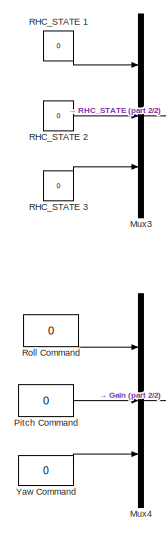
[diagram: root canvas - part 1/2, top left region]
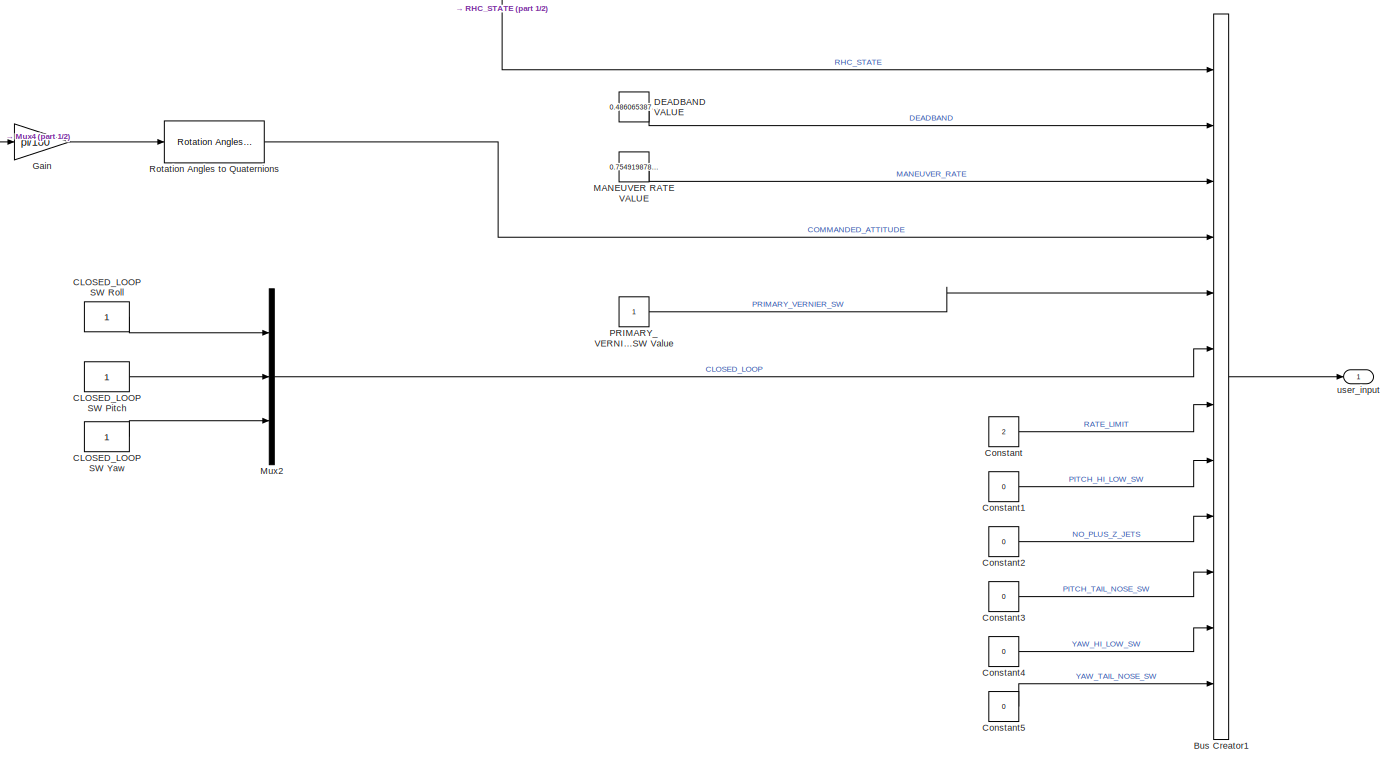
[diagram: root canvas - part 2/2, full width, middle band]
MODEL slx_9120ebd37f4a
KIND model
CONFIG AbsTol = auto
CONFIG EnableMultiTasking = off
CONFIG FixedStep = 0.08
CONFIG MaxStep = auto
CONFIG MinStep = auto
CONFIG RelTol = 1e-3
CONFIG SampleTimeConstraint = Unconstrained
CONFIG Solver = FixedStepDiscrete
CONFIG SolverName = FixedStepDiscrete
CONFIG StartTime = 0.0
CONFIG StopTime = 10.0
BLOCK [BusCreator] Bus Creator1
  DisplayOption = bar
  InheritFromInputs = on
  Inputs = 12
  NonVirtualBus = on
  OutDataTypeStr = Bus: user_inputsBus
  Ports = [12, 1]
BLOCK [Constant] CLOSED_LOOP SW Pitch
  OutDataTypeStr = boolean
BLOCK [Constant] CLOSED_LOOP SW Roll
  OutDataTypeStr = boolean
BLOCK [Constant] CLOSED_LOOP SW Yaw
  OutDataTypeStr = boolean
BLOCK [Constant] Constant
  Value = 2
BLOCK [Constant] Constant1
  OutDataTypeStr = boolean
  Value = 0
BLOCK [Constant] Constant2
  OutDataTypeStr = boolean
  Value = 0
BLOCK [Constant] Constant3
  OutDataTypeStr = boolean
  Value = 0
BLOCK [Constant] Constant4
  OutDataTypeStr = boolean
  Value = 0
BLOCK [Constant] Constant5
  OutDataTypeStr = boolean
  Value = 0
BLOCK [Constant] DEADBAND VALUE
  Value = 0.4860653877258
BLOCK [Gain] Gain
  Gain = pi/180
  OutDataTypeStr = Inherit: Inherit via internal rule
  ParamDataTypeStr = Inherit: Inherit via internal rule
  SaturateOnIntegerOverflow = off
BLOCK [Constant] MANEUVER RATE VALUE
  Value = 0.7549198786418
BLOCK [Mux] Mux2
  DisplayOption = bar
  Inputs = 3
  Ports = [3, 1]
BLOCK [Mux] Mux3
  DisplayOption = bar
  Inputs = 3
  Ports = [3, 1]
BLOCK [Mux] Mux4
  DisplayOption = bar
  Inputs = 3
  Ports = [3, 1]
BLOCK [Constant] PRIMARY_VERNIER_SW Value
  OutDataTypeStr = boolean
BLOCK [Constant] Pitch Command
  Value = 0
BLOCK [Constant] RHC_STATE 1
  OutDataTypeStr = int8
  Value = 0
BLOCK [Constant] RHC_STATE 2
  OutDataTypeStr = int8
  Value = 0
BLOCK [Constant] RHC_STATE 3
  OutDataTypeStr = int8
  Value = 0
BLOCK [Constant] Roll Command
  Value = 0
BLOCK [Reference] Rotation Angles to Quaternions  REF=MATLAB_Function_lib/Rotation Angles to Quaternions
  Ports = [1, 1]
  SourceBlock = MATLAB_Function_lib/Rotation Angles to Quaternions
  SourceType = SubSystem
BLOCK [Constant] Yaw Command
  Value = 0
BLOCK [Outport] user_input
  IconDisplay = Port number
  OutDataTypeStr = Bus: user_inputsBus
LINE Bus Creator1:1 -> user_input:1
LINE CLOSED_LOOP SW Pitch:1 -> Mux2:2
LINE CLOSED_LOOP SW Roll:1 -> Mux2:1
LINE CLOSED_LOOP SW Yaw:1 -> Mux2:3
LINE Constant1:1 -> Bus Creator1:8
LINE Constant2:1 -> Bus Creator1:9
LINE Constant3:1 -> Bus Creator1:10
LINE Constant4:1 -> Bus Creator1:11
LINE Constant5:1 -> Bus Creator1:12
LINE Constant:1 -> Bus Creator1:7
LINE DEADBAND VALUE:1 -> Bus Creator1:2
LINE Gain:1 -> Rotation Angles to Quaternions:1
LINE MANEUVER RATE VALUE:1 -> Bus Creator1:3
LINE Mux2:1 -> Bus Creator1:6
LINE Mux3:1 -> Bus Creator1:1
LINE Mux4:1 -> Gain:1
LINE PRIMARY_VERNIER_SW Value:1 -> Bus Creator1:5
LINE Pitch Command:1 -> Mux4:2
LINE RHC_STATE 1:1 -> Mux3:1
LINE RHC_STATE 2:1 -> Mux3:2
LINE RHC_STATE 3:1 -> Mux3:3
LINE Roll Command:1 -> Mux4:1
LINE Rotation Angles to Quaternions:1 -> Bus Creator1:4
LINE Yaw Command:1 -> Mux4:3
